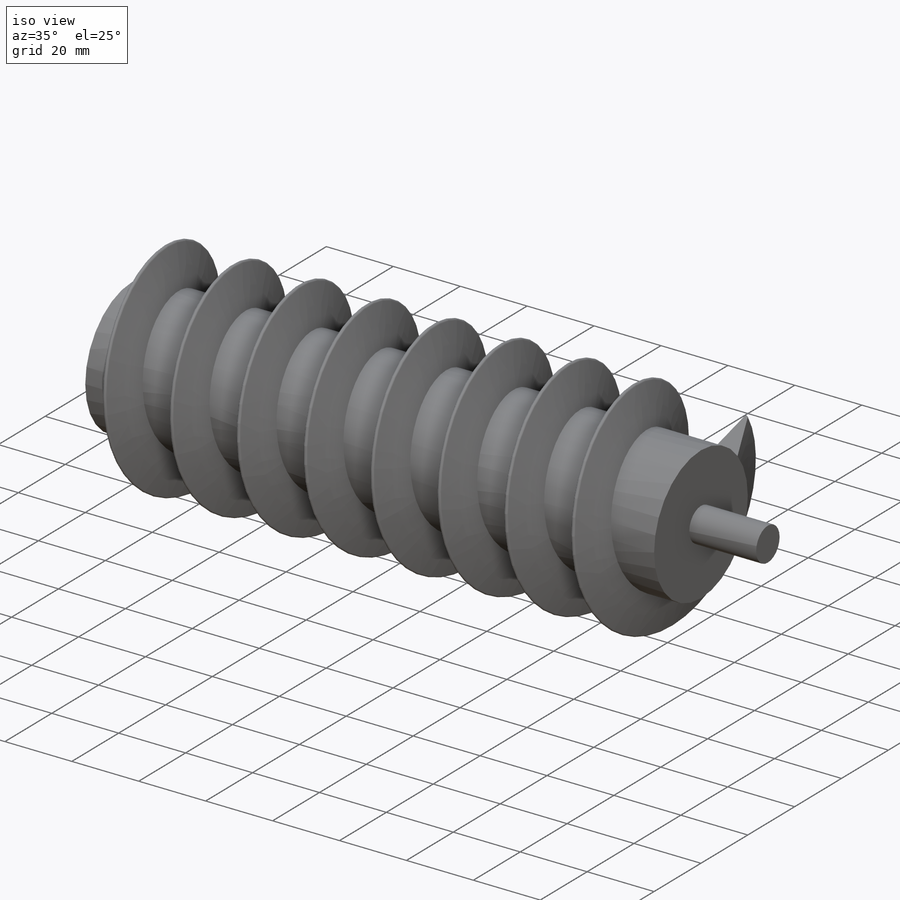
[diagram: iso view]
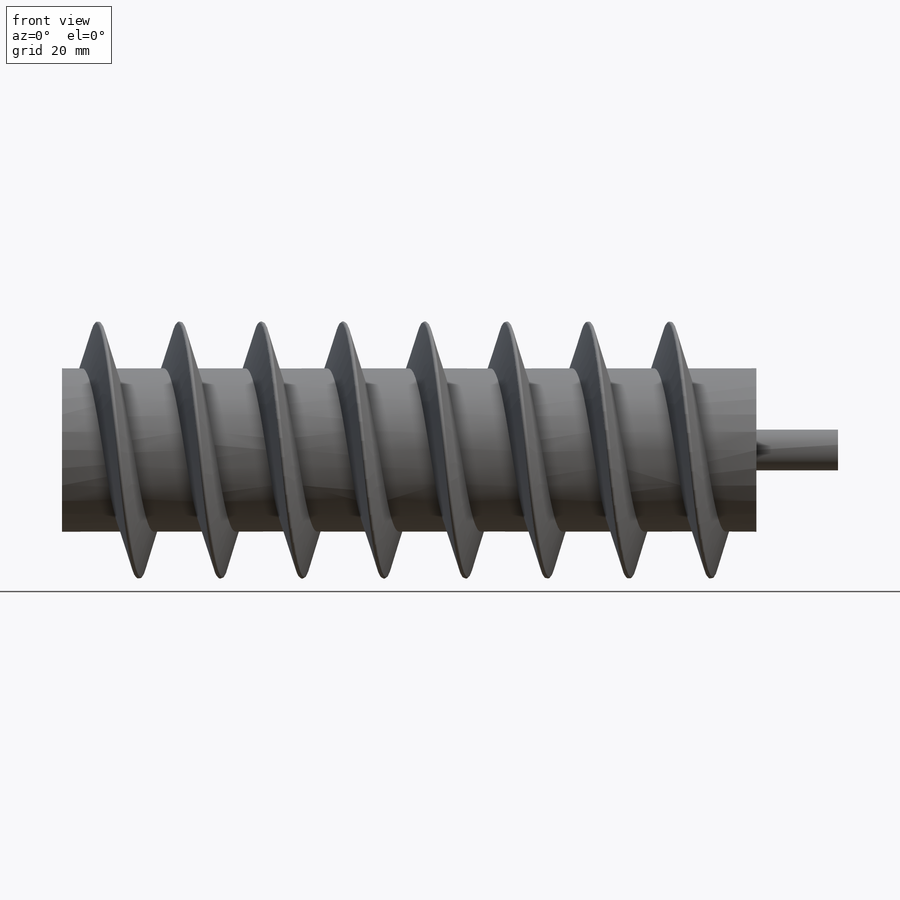
[diagram: front view]
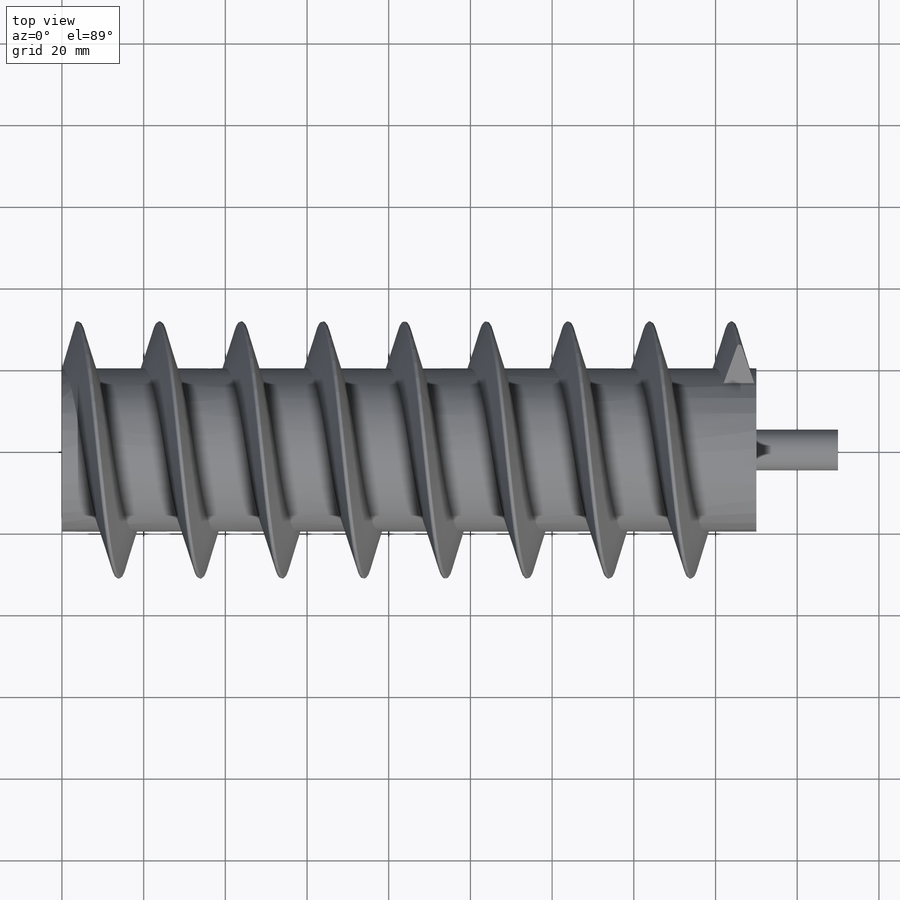
[diagram: top view]
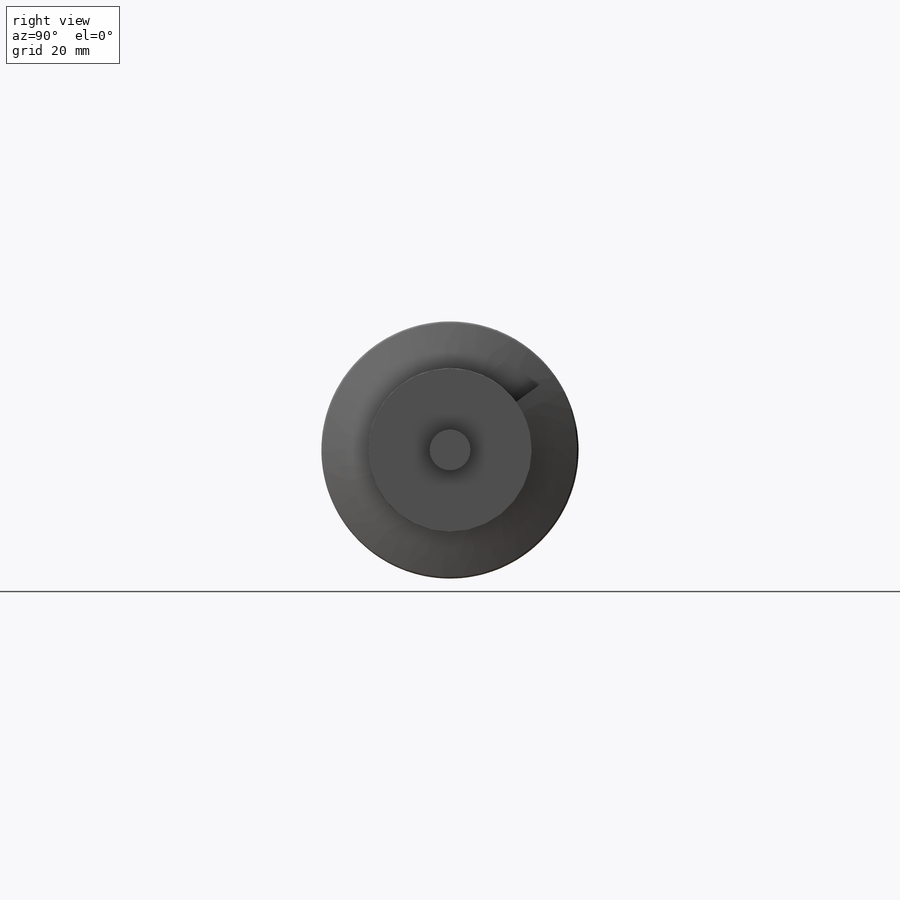
[diagram: right view]
SOLIDWORKS PART (.sldprt)
format: sldprt  version: not decoded by parser v0  size: 600,064 bytes
history: native  units: mm
features: sketch x3, material x1, revolve x1, helix x1, sweep x1 (+13 scaffold rows collapsed)
feature tree (20):
  scaffold x13  (default folders/planes/origin — collapsed)
  material  "Material <not specified>"
  sketch  "Sketch1"  dims[c1.D1=200.0mm c1.D2=40.0mm c1.D3=7.0mm c2.D2=20.0mm c2.D4=5.0mm c2.D5=20.0mm c2.D6=20.0mm c2.D1=201.0mm c3.D2=17.0mm c3.D3=17.0mm c4.D2=23.0mm c4.D1=170.0mm c5.D2=20.0mm]
  revolve  "Revolve1"  Angle=360deg
  sketch  "Sketch3"  dims[D1=63.0mm]
  helix  "Helix/Spiral1"  Pitch=162mm
  sketch  "Sketch12"  dims[c1.D2=~0.923528mm c1.D3=1.0mm c2.D2=0.5mm c2.D3=0.5mm c3.D2=~1.432468mm c3.D1=5.0mm c4.D2=7.0mm c4.D1=7.5mm]
  sweep  "Sweep4"
decode coverage: 5 of 6 modeling features carry decoded parameters
note: ~ marks probable driven/reference dimensions
note: suppression state not decoded; provenance and decode notes live in map.json
